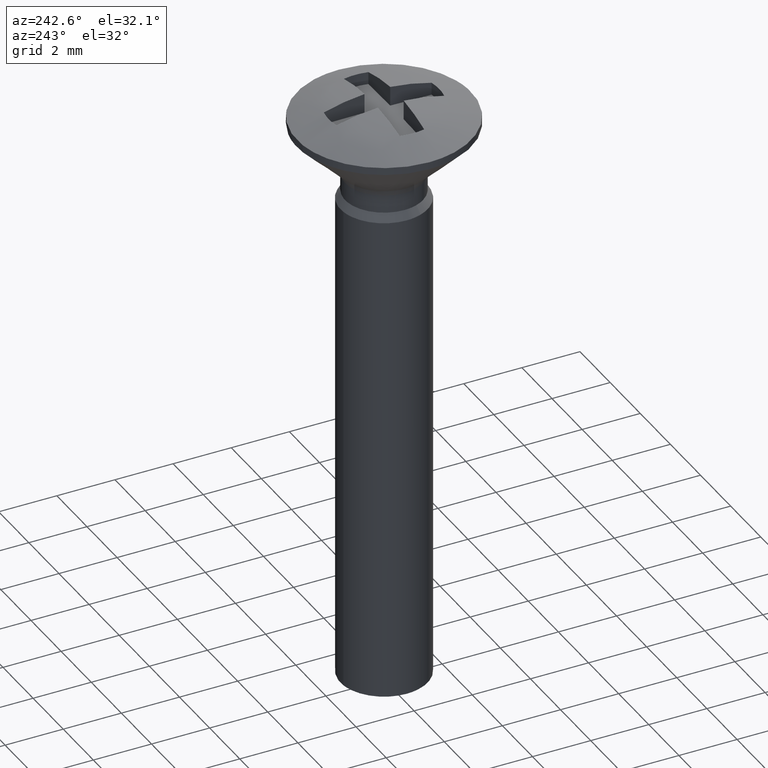
[diagram: clean part render]
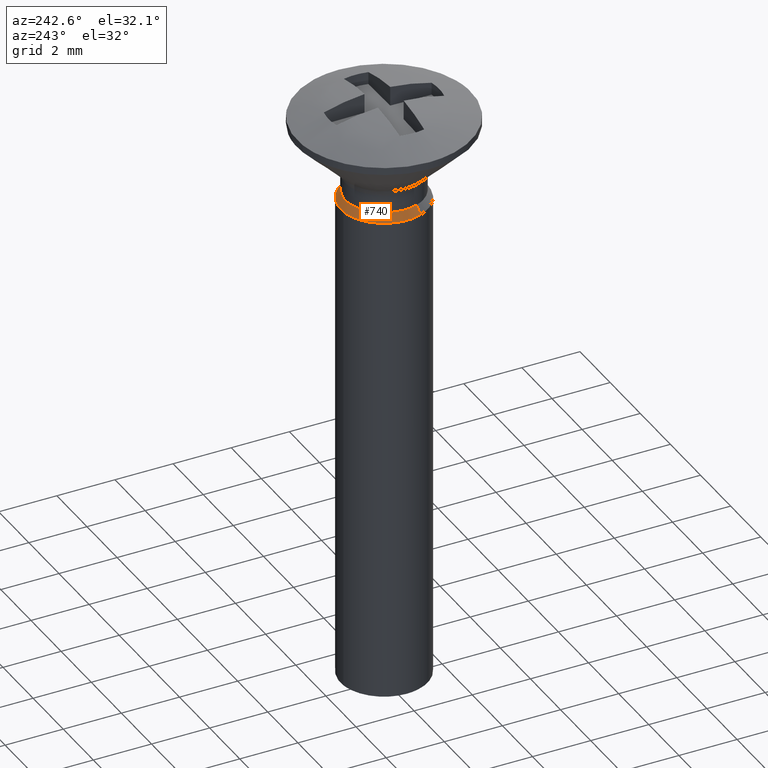
[diagram: same view with one face highlighted and labeled with its STEP entity id]
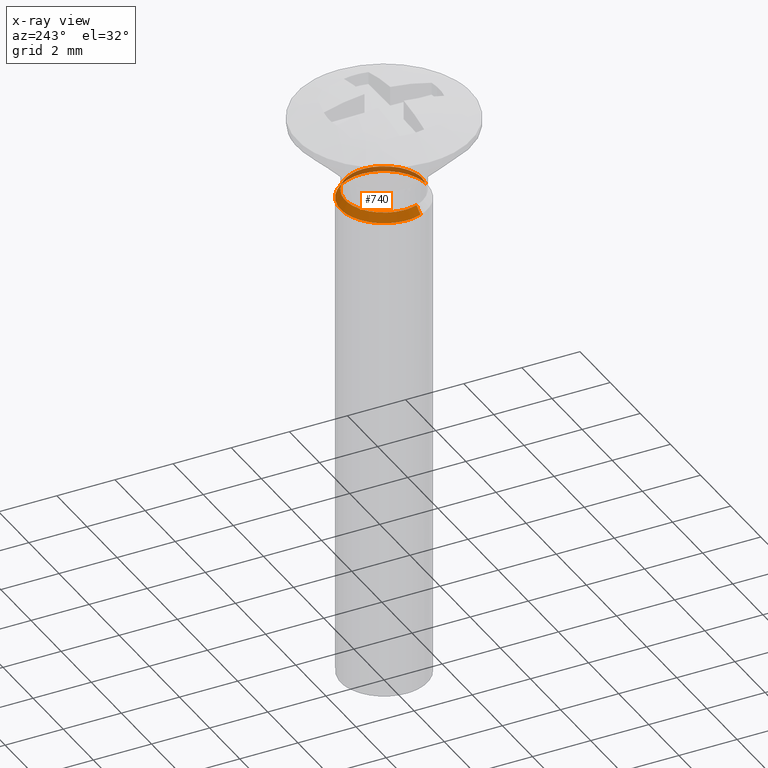
[diagram: x-ray of the same camera — body ghosted, the highlighted face saturated]
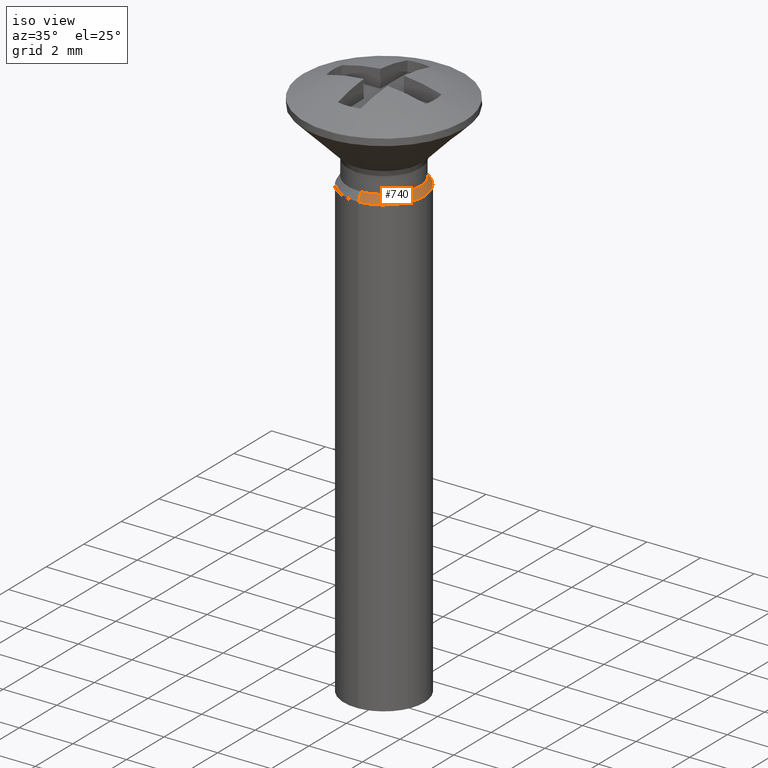
[diagram: same view with one face highlighted and labeled with its STEP entity id]
A machine part, auxiliary view. The second image highlights one B-rep face of the part: STEP entity #740.
The next image is the same camera in x-ray: the body ghosted, the highlighted face saturated — about 26% of this face is hidden behind the body in this view.
A second angle (iso view) of the same face is appended — the face is thin or edge-on in the first view.
In plain terms, the highlighted face is a freeform B-spline surface patch.
Its self-contained STEP definition (entity closure, byte-faithful):
#459=CARTESIAN_POINT('',(-0.177051351992532,1.489514289544621,-2.930700000000000));
#460=VERTEX_POINT('',#459);
#466=CARTESIAN_POINT('',(1.500000000000000,0.0,-2.930700000000000));
#467=VERTEX_POINT('',#466);
#468=CARTESIAN_POINT('',(-0.177051351992532,1.489514289544620,-2.930700000000000));
#469=CARTESIAN_POINT('',(-0.088836179485338,1.500000000000000,-2.930700000000000));
#470=CARTESIAN_POINT('',(0.0,1.500000000000000,-2.930700000000000));
#471=CARTESIAN_POINT('',(1.500000000000000,1.500000000000000,-2.930700000000000));
#472=CARTESIAN_POINT('',(1.500000000000000,0.0,-2.930700000000000));
#480=(BOUNDED_CURVE()B_SPLINE_CURVE(2,(#468,#469,#470,#471,#472),.UNSPECIFIED.,.F.,.U.)B_SPLINE_CURVE_WITH_KNOTS((3,2,3),(0.229562473513966,0.250000000000000,0.500000000000000),.UNSPECIFIED.)CURVE()GEOMETRIC_REPRESENTATION_ITEM()RATIONAL_B_SPLINE_CURVE((0.956026754184597,0.976055948331682,1.0,0.707106781186548,1.0))REPRESENTATION_ITEM(''));
#481=EDGE_CURVE('',#460,#467,#480,.T.);
#483=CARTESIAN_POINT('',(0.091572809332409,-1.497202197634019,-2.930700000010583));
#484=VERTEX_POINT('',#483);
#485=CARTESIAN_POINT('',(1.500000000000000,0.0,-2.930700000000000));
#486=CARTESIAN_POINT('',(1.500000000000001,-1.411059100245468,-2.930700000000001));
#487=CARTESIAN_POINT('',(0.091572809332409,-1.497202197634019,-2.930700000010583));
#495=(BOUNDED_CURVE()B_SPLINE_CURVE(2,(#485,#486,#487),.UNSPECIFIED.,.F.,.U.)B_SPLINE_CURVE_WITH_KNOTS((3,3),(0.500000000000000,0.739332962228167),.UNSPECIFIED.)CURVE()GEOMETRIC_REPRESENTATION_ITEM()RATIONAL_B_SPLINE_CURVE((1.0,0.719603993299335,0.976072041643623))REPRESENTATION_ITEM(''));
#496=EDGE_CURVE('',#467,#484,#495,.T.);
#570=CARTESIAN_POINT('',(-1.404215368161664,-0.527426961599152,-2.930700000001795));
#571=VERTEX_POINT('',#570);
#587=CARTESIAN_POINT('',(-1.500000000000000,0.0,-2.930700000000000));
#588=VERTEX_POINT('',#587);
#589=CARTESIAN_POINT('',(-1.404215368161664,-0.527426961599152,-2.930700000001795));
#590=CARTESIAN_POINT('',(-1.500000000000000,-0.272411079112753,-2.930700000000000));
#591=CARTESIAN_POINT('',(-1.500000000000000,0.0,-2.930700000000000));
#599=(BOUNDED_CURVE()B_SPLINE_CURVE(2,(#589,#590,#591),.UNSPECIFIED.,.F.,.U.)B_SPLINE_CURVE_WITH_KNOTS((3,3),(0.940284170896338,1.0),.UNSPECIFIED.)CURVE()GEOMETRIC_REPRESENTATION_ITEM()RATIONAL_B_SPLINE_CURVE((0.893499554632619,0.930038554398858,1.0))REPRESENTATION_ITEM(''));
#600=EDGE_CURVE('',#571,#588,#599,.T.);
#602=CARTESIAN_POINT('',(-1.500000000000000,0.0,-2.930700000000000));
#603=CARTESIAN_POINT('',(-1.500000000000000,1.332261788913731,-2.930700000000000));
#604=CARTESIAN_POINT('',(-0.177051351992532,1.489514289544620,-2.930700000000000));
#612=(BOUNDED_CURVE()B_SPLINE_CURVE(2,(#602,#603,#604),.UNSPECIFIED.,.F.,.U.)B_SPLINE_CURVE_WITH_KNOTS((3,3),(0.0,0.229562473513966),.UNSPECIFIED.)CURVE()GEOMETRIC_REPRESENTATION_ITEM()RATIONAL_B_SPLINE_CURVE((1.0,0.731050832854866,0.956026754184597))REPRESENTATION_ITEM(''));
#613=EDGE_CURVE('',#588,#460,#612,.T.);
#619=CARTESIAN_POINT('',(-1.248288953325010,-0.468860592727766,-2.642264999999998));
#620=CARTESIAN_POINT('',(-1.318721709572230,-0.281341247021767,-2.642265000000000));
#621=CARTESIAN_POINT('',(-1.330950370270670,-0.081404411936012,-2.642264999999999));
#622=CARTESIAN_POINT('',(-1.412354782206681,1.249545958334658,-2.642265000000000));
#623=CARTESIAN_POINT('',(-0.081404411936012,1.330950370270670,-2.642264999999999));
#624=CARTESIAN_POINT('',(1.249545958334658,1.412354782206681,-2.642265000000000));
#625=CARTESIAN_POINT('',(1.330950370270670,0.081404411936012,-2.642264999999999));
#626=CARTESIAN_POINT('',(1.412354782206681,-1.249545958334658,-2.642265000000000));
#627=CARTESIAN_POINT('',(0.081404411936012,-1.330950370270670,-2.642264999999999));
#628=CARTESIAN_POINT('',(-1.408113528535986,-0.528891120808848,-2.937910875000001));
#629=CARTESIAN_POINT('',(-1.487564137034614,-0.317362750836896,-2.937910875000001));
#630=CARTESIAN_POINT('',(-1.501358493316854,-0.091827019236442,-2.937910875000001));
#631=CARTESIAN_POINT('',(-1.593185512553296,1.409531474080412,-2.937910875000001));
#632=CARTESIAN_POINT('',(-0.091827019236442,1.501358493316854,-2.937910875000001));
#633=CARTESIAN_POINT('',(1.409531474080412,1.593185512553296,-2.937910875000001));
#634=CARTESIAN_POINT('',(1.501358493316854,0.091827019236442,-2.937910875000001));
#635=CARTESIAN_POINT('',(1.593185512553296,-1.409531474080412,-2.937910875000001));
#636=CARTESIAN_POINT('',(0.091827019236442,-1.501358493316854,-2.937910875000001));
#644=(BOUNDED_SURFACE()B_SPLINE_SURFACE(2,1,((#619,#628),(#620,#629),(#621,#630),(#622,#631),(#623,#632),(#624,#633),(#625,#634),(#626,#635),(#627,#636)),.UNSPECIFIED.,.F.,.F.,.U.)B_SPLINE_SURFACE_WITH_KNOTS((3,2,2,2,3),(2,2),(1.256637061435917,1.570796326794897,3.141592653589793,4.712388980384690,6.283185307179586),(0.0,0.341400120895671),.UNSPECIFIED.)GEOMETRIC_REPRESENTATION_ITEM()RATIONAL_B_SPLINE_SURFACE(((0.906274169979695,0.906274169979695),(0.941421356237309,0.941421356237309),(1.0,1.0),(0.707106781186548,0.707106781186548),(1.0,1.0),(0.707106781186548,0.707106781186548),(1.0,1.0),(0.707106781186548,0.707106781186548),(1.0,1.0)))REPRESENTATION_ITEM('')SURFACE());
#645=ORIENTED_EDGE('',*,*,#600,.F.);
#646=CARTESIAN_POINT('',(-1.252092036604620,-0.470289040781201,-2.649300000004904));
#647=VERTEX_POINT('',#646);
#648=CARTESIAN_POINT('',(-1.252092036604620,-0.470289040781201,-2.649300000004904));
#649=CARTESIAN_POINT('',(-1.404215368161664,-0.527426961599152,-2.930700000001795));
#650=QUASI_UNIFORM_CURVE('',1,(#648,#649),.UNSPECIFIED.,.F.,.U.);
#651=EDGE_CURVE('',#647,#571,#650,.T.);
#652=ORIENTED_EDGE('',*,*,#651,.F.);
#653=CARTESIAN_POINT('',(-1.337500000000012,0.0,-2.649300000000000));
#654=VERTEX_POINT('',#653);
#655=CARTESIAN_POINT('',(-1.252092036604620,-0.470289040781201,-2.649300000004904));
#656=CARTESIAN_POINT('',(-1.337500000000012,-0.242899878899023,-2.649300000000000));
#657=CARTESIAN_POINT('',(-1.337500000000012,0.0,-2.649300000000000));
#665=(BOUNDED_CURVE()B_SPLINE_CURVE(2,(#655,#656,#657),.UNSPECIFIED.,.F.,.U.)B_SPLINE_CURVE_WITH_KNOTS((3,3),(0.940284170890969,1.0),.UNSPECIFIED.)CURVE()GEOMETRIC_REPRESENTATION_ITEM()RATIONAL_B_SPLINE_CURVE((0.893499554626048,0.930038554392567,1.0))REPRESENTATION_ITEM(''));
#666=EDGE_CURVE('',#647,#654,#665,.T.);
#667=ORIENTED_EDGE('',*,*,#666,.T.);
#668=CARTESIAN_POINT('',(0.357431328012133,1.288855731164469,-2.649300000000000));
#669=VERTEX_POINT('',#668);
#670=CARTESIAN_POINT('',(-1.337500000000012,0.0,-2.649300000000000));
#671=CARTESIAN_POINT('',(-1.337500000000012,1.337500000000012,-2.649299999999999));
#672=CARTESIAN_POINT('',(0.0,1.337500000000012,-2.649300000000000));
#673=CARTESIAN_POINT('',(0.182025761230229,1.337500000000012,-2.649299999999999));
#674=CARTESIAN_POINT('',(0.357431328012133,1.288855731164469,-2.649300000000001));
#682=(BOUNDED_CURVE()B_SPLINE_CURVE(2,(#670,#671,#672,#673,#674),.UNSPECIFIED.,.F.,.U.)B_SPLINE_CURVE_WITH_KNOTS((3,2,3),(0.0,0.250000000000000,0.295548826635856),.UNSPECIFIED.)CURVE()GEOMETRIC_REPRESENTATION_ITEM()RATIONAL_B_SPLINE_CURVE((1.0,0.707106781186548,1.0,0.946636230213793,0.912717717216607))REPRESENTATION_ITEM(''));
#683=EDGE_CURVE('',#654,#669,#682,.T.);
#684=ORIENTED_EDGE('',*,*,#683,.T.);
#685=CARTESIAN_POINT('',(1.141643147022780,0.696819327269227,-2.649300000000000));
#686=VERTEX_POINT('',#685);
#687=CARTESIAN_POINT('',(0.357431328012133,1.288855731164469,-2.649300000000001));
#688=CARTESIAN_POINT('',(0.866445072778127,1.147693726470708,-2.649299999999999));
#689=CARTESIAN_POINT('',(1.141643147022780,0.696819327269227,-2.649300000000000));
#697=(BOUNDED_CURVE()B_SPLINE_CURVE(2,(#687,#688,#689),.UNSPECIFIED.,.F.,.U.)B_SPLINE_CURVE_WITH_KNOTS((3,3),(0.295548826635856,0.410988855204128),.UNSPECIFIED.)CURVE()GEOMETRIC_REPRESENTATION_ITEM()RATIONAL_B_SPLINE_CURVE((0.912717717216607,0.826753831896538,0.865692738530288))REPRESENTATION_ITEM(''));
#698=EDGE_CURVE('',#669,#686,#697,.T.);
#699=ORIENTED_EDGE('',*,*,#698,.T.);
#700=CARTESIAN_POINT('',(1.337500000000012,0.0,-2.649300000000000));
#701=VERTEX_POINT('',#700);
#702=CARTESIAN_POINT('',(1.141643147022780,0.696819327269227,-2.649300000000000));
#703=CARTESIAN_POINT('',(1.337500000000012,0.375934665710545,-2.649300000000000));
#704=CARTESIAN_POINT('',(1.337500000000012,0.0,-2.649300000000000));
#712=(BOUNDED_CURVE()B_SPLINE_CURVE(2,(#702,#703,#704),.UNSPECIFIED.,.F.,.U.)B_SPLINE_CURVE_WITH_KNOTS((3,3),(0.410988855204129,0.500000000000000),.UNSPECIFIED.)CURVE()GEOMETRIC_REPRESENTATION_ITEM()RATIONAL_B_SPLINE_CURVE((0.865692738530288,0.895716957161868,1.0))REPRESENTATION_ITEM(''));
#713=EDGE_CURVE('',#686,#701,#712,.T.);
#714=ORIENTED_EDGE('',*,*,#713,.T.);
#715=CARTESIAN_POINT('',(0.081652421689995,-1.335005292891760,-2.649300000010890));
#716=VERTEX_POINT('',#715);
#717=CARTESIAN_POINT('',(1.337500000000012,0.0,-2.649300000000000));
#718=CARTESIAN_POINT('',(1.337500000000012,-1.258194364369785,-2.649300000000000));
#719=CARTESIAN_POINT('',(0.081652421689995,-1.335005292891760,-2.649300000010891));
#727=(BOUNDED_CURVE()B_SPLINE_CURVE(2,(#717,#718,#719),.UNSPECIFIED.,.F.,.U.)B_SPLINE_CURVE_WITH_KNOTS((3,3),(0.500000000000000,0.739332962226009),.UNSPECIFIED.)CURVE()GEOMETRIC_REPRESENTATION_ITEM()RATIONAL_B_SPLINE_CURVE((1.0,0.719603993301864,0.976072041638997))REPRESENTATION_ITEM(''));
#728=EDGE_CURVE('',#701,#716,#727,.T.);
#729=ORIENTED_EDGE('',*,*,#728,.T.);
#730=CARTESIAN_POINT('',(0.081652421689995,-1.335005292891760,-2.649300000010890));
#731=CARTESIAN_POINT('',(0.091572809332409,-1.497202197634019,-2.930700000010583));
#732=QUASI_UNIFORM_CURVE('',1,(#730,#731),.UNSPECIFIED.,.F.,.U.);
#733=EDGE_CURVE('',#716,#484,#732,.T.);
#734=ORIENTED_EDGE('',*,*,#733,.T.);
#735=ORIENTED_EDGE('',*,*,#496,.F.);
#736=ORIENTED_EDGE('',*,*,#481,.F.);
#737=ORIENTED_EDGE('',*,*,#613,.F.);
#738=EDGE_LOOP('',(#645,#652,#667,#684,#699,#714,#729,#734,#735,#736,#737));
#739=FACE_OUTER_BOUND('',#738,.T.);
#740=ADVANCED_FACE('',(#739),#644,.T.);